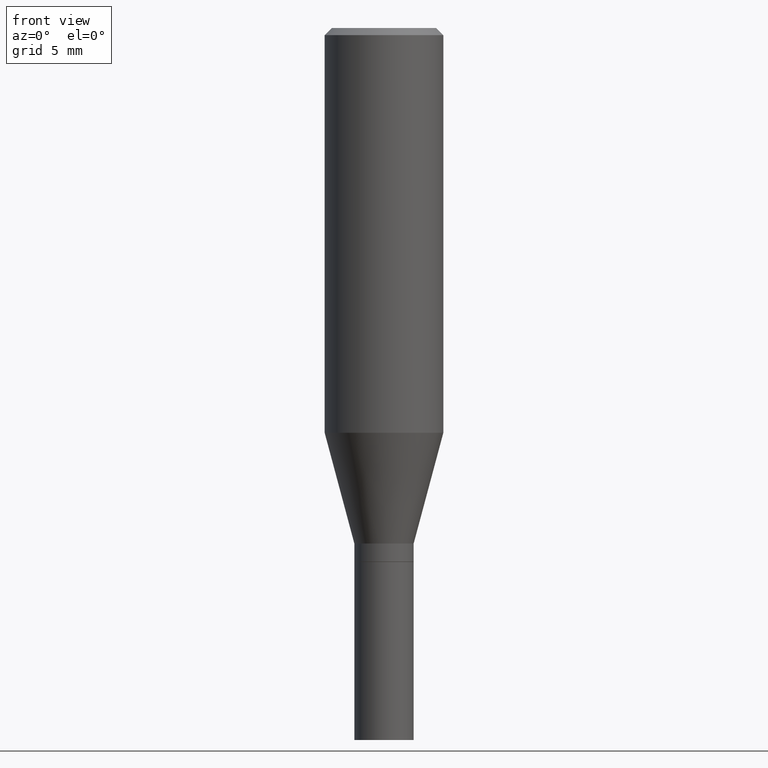
[diagram: clean part render]
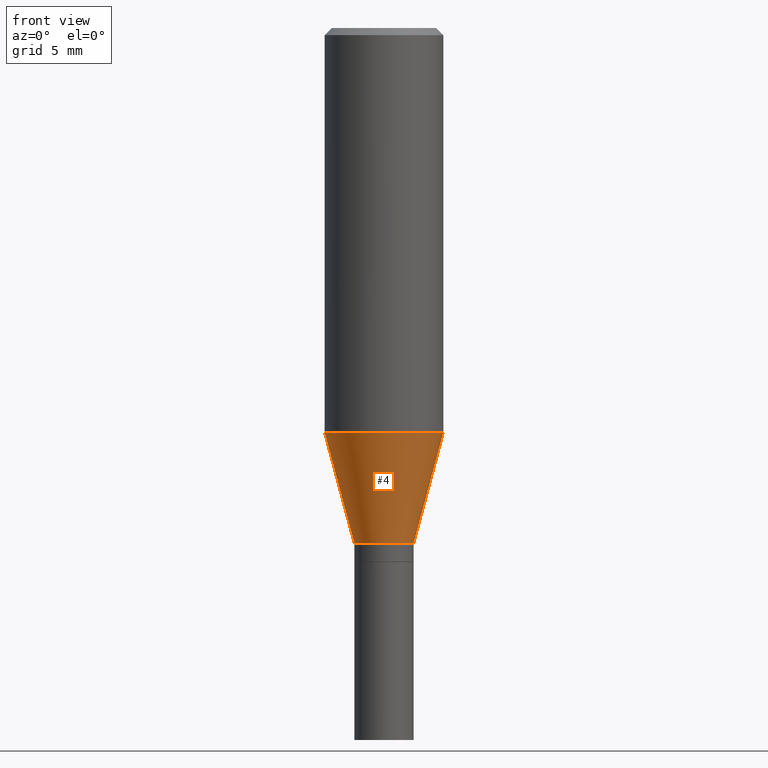
[diagram: same view with one face highlighted and labeled with its STEP entity id]
A machine part, front view. The second image highlights one B-rep face of the part: STEP entity #4.
In plain terms, the highlighted conical surface has half-angle 15 deg.
Its self-contained STEP definition (entity closure, byte-faithful):
#4 = ADVANCED_FACE ( 'NONE', ( #27 ), #19, .T. ) ;
#19 = CONICAL_SURFACE ( 'NONE', #26, 0.06249999999999992367, 0.2617993877991499074 ) ;
#26 = AXIS2_PLACEMENT_3D ( 'NONE', #210, #105, #183 ) ;
#27 = FACE_OUTER_BOUND ( 'NONE', #74, .T. ) ;
#39 = EDGE_CURVE ( 'NONE', #369, #331, #212, .T. ) ;
#50 = EDGE_CURVE ( 'NONE', #369, #257, #133, .T. ) ;
#51 = CARTESIAN_POINT ( 'NONE',  ( 0.1250000000000000000, -3.850219959304363208E-15, -0.8527468245269455016 ) ) ;
#65 = DIRECTION ( 'NONE',  ( -0.2588190451025211836, 5.211531920934547886E-15, 0.9659258262890679791 ) ) ;
#74 = EDGE_LOOP ( 'NONE', ( #152, #252, #191, #368 ) ) ;
#75 = EDGE_CURVE ( 'NONE', #257, #432, #281, .T. ) ;
#88 = DIRECTION ( 'NONE',  ( -2.445468806185136597E-29, 3.491481338843145583E-15, 1.000000000000000000 ) ) ;
#105 = DIRECTION ( 'NONE',  ( -2.445468806185136597E-29, 3.491481338843145583E-15, 1.000000000000000000 ) ) ;
#133 = CIRCLE ( 'NONE', #410, 0.06249999999999992367 ) ;
#138 = CARTESIAN_POINT ( 'NONE',  ( 0.06249999999999992367, -4.228183901339047304E-15, -1.086000000000000076 ) ) ;
#143 = CARTESIAN_POINT ( 'NONE',  ( -0.06249999999999992367, -3.347659524133594202E-15, -1.086000000000000076 ) ) ;
#150 = VECTOR ( 'NONE', #429, 39.37007874015748854 ) ;
#152 = ORIENTED_EDGE ( 'NONE', *, *, #39, .F. ) ;
#178 = CARTESIAN_POINT ( 'NONE',  ( 2.655779123517058654E-29, -3.791748733983656424E-15, -1.086000000000000076 ) ) ;
#183 = DIRECTION ( 'NONE',  ( 1.000000000000000000, -6.982962677686263555E-15, 0.000000000000000000 ) ) ;
#191 = ORIENTED_EDGE ( 'NONE', *, *, #75, .T. ) ;
#192 = CARTESIAN_POINT ( 'NONE',  ( 2.085365758954075532E-29, -2.977349624593580658E-15, -0.8527468245269455016 ) ) ;
#210 = CARTESIAN_POINT ( 'NONE',  ( 2.655779123517058654E-29, -3.791748733983656424E-15, -1.086000000000000076 ) ) ;
#212 = LINE ( 'NONE', #143, #392 ) ;
#216 = CARTESIAN_POINT ( 'NONE',  ( -0.06249999999999992367, -2.718415364513524617E-15, -1.086000000000000076 ) ) ;
#252 = ORIENTED_EDGE ( 'NONE', *, *, #50, .T. ) ;
#257 = VERTEX_POINT ( 'NONE', #309 ) ;
#273 = DIRECTION ( 'NONE',  ( -2.445468806185136597E-29, 3.491481338843145583E-15, 1.000000000000000000 ) ) ;
#281 = LINE ( 'NONE', #138, #150 ) ;
#309 = CARTESIAN_POINT ( 'NONE',  ( 0.06249999999999992367, -4.228183901339047304E-15, -1.086000000000000076 ) ) ;
#315 = DIRECTION ( 'NONE',  ( 1.000000000000000000, -6.982962677686263555E-15, 0.000000000000000000 ) ) ;
#331 = VERTEX_POINT ( 'NONE', #427 ) ;
#368 = ORIENTED_EDGE ( 'NONE', *, *, #461, .F. ) ;
#369 = VERTEX_POINT ( 'NONE', #216 ) ;
#383 = DIRECTION ( 'NONE',  ( 1.000000000000000000, -6.982962677686266711E-15, 0.000000000000000000 ) ) ;
#392 = VECTOR ( 'NONE', #65, 39.37007874015748854 ) ;
#410 = AXIS2_PLACEMENT_3D ( 'NONE', #178, #273, #315 ) ;
#427 = CARTESIAN_POINT ( 'NONE',  ( -0.1250000000000000000, -2.089171204893455031E-15, -0.8527468245269455016 ) ) ;
#429 = DIRECTION ( 'NONE',  ( 0.2588190451025211836, 1.565188264969622559E-15, 0.9659258262890679791 ) ) ;
#431 = AXIS2_PLACEMENT_3D ( 'NONE', #192, #88, #383 ) ;
#432 = VERTEX_POINT ( 'NONE', #51 ) ;
#440 = CIRCLE ( 'NONE', #431, 0.1250000000000000000 ) ;
#461 = EDGE_CURVE ( 'NONE', #331, #432, #440, .T. ) ;